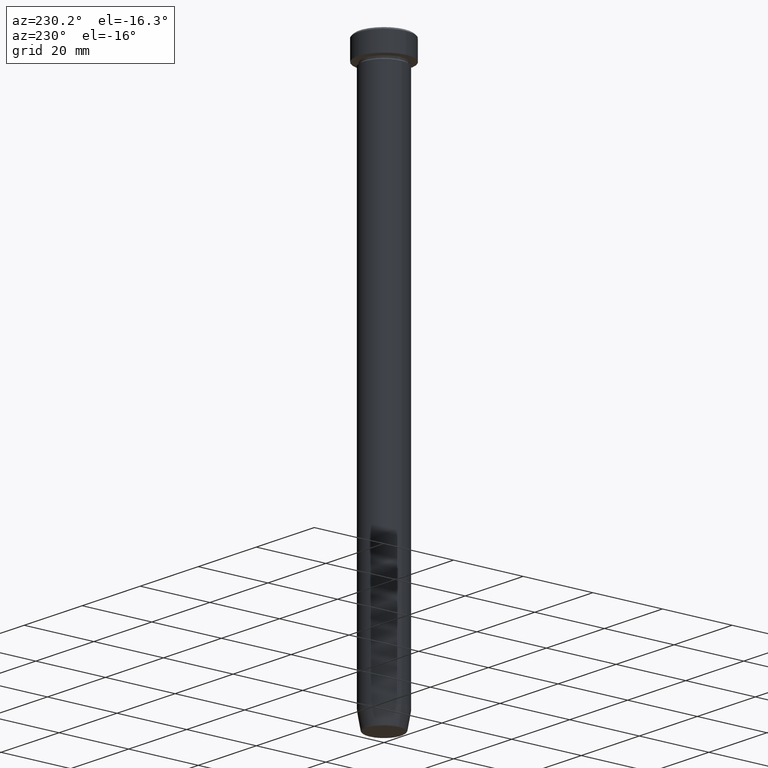
[diagram: clean part render]
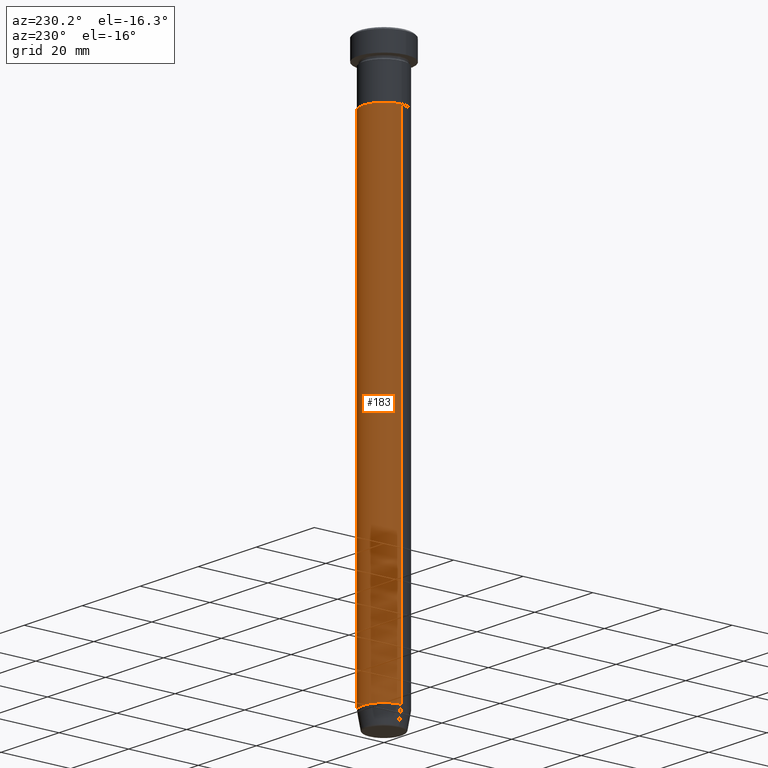
[diagram: same view with one face highlighted and labeled with its STEP entity id]
A machine part, auxiliary view. The second image highlights one B-rep face of the part: STEP entity #183.
In plain terms, the highlighted cylindrical surface (edge-blend (fillet) strip) has radius 6 mm, axis along (-0, -0, 1).
Its self-contained STEP definition (entity closure, byte-faithful):
#4 = CIRCLE ( 'NONE', #353, 6.000000000000000000 ) ;
#26 = CARTESIAN_POINT ( 'NONE',  ( 0.000000000000000000, 0.000000000000000000, -154.9999999999999716 ) ) ;
#27 = CARTESIAN_POINT ( 'NONE',  ( 0.000000000000000000, 0.000000000000000000, 0.000000000000000000 ) ) ;
#84 = DIRECTION ( 'NONE',  ( -0.000000000000000000, -0.000000000000000000, 1.000000000000000000 ) ) ;
#95 = VERTEX_POINT ( 'NONE', #323 ) ;
#124 = DIRECTION ( 'NONE',  ( -0.000000000000000000, -0.000000000000000000, 1.000000000000000000 ) ) ;
#128 = ORIENTED_EDGE ( 'NONE', *, *, #392, .T. ) ;
#162 = DIRECTION ( 'NONE',  ( -0.000000000000000000, -0.000000000000000000, 1.000000000000000000 ) ) ;
#169 = AXIS2_PLACEMENT_3D ( 'NONE', #542, #124, #347 ) ;
#183 = ADVANCED_FACE ( 'NONE', ( #441 ), #205, .T. ) ;
#205 = CYLINDRICAL_SURFACE ( 'NONE', #223, 6.000000000000000000 ) ;
#206 = ORIENTED_EDGE ( 'NONE', *, *, #544, .T. ) ;
#207 = DIRECTION ( 'NONE',  ( -0.000000000000000000, -0.000000000000000000, 1.000000000000000000 ) ) ;
#218 = DIRECTION ( 'NONE',  ( -0.000000000000000000, -0.000000000000000000, 1.000000000000000000 ) ) ;
#223 = AXIS2_PLACEMENT_3D ( 'NONE', #27, #84, #263 ) ;
#225 = CARTESIAN_POINT ( 'NONE',  ( -6.000000000000000000, 7.347880794884119736E-16, -17.00000000000000000 ) ) ;
#244 = VECTOR ( 'NONE', #162, 1000.000000000000000 ) ;
#263 = DIRECTION ( 'NONE',  ( 1.000000000000000000, 0.000000000000000000, 0.000000000000000000 ) ) ;
#284 = CARTESIAN_POINT ( 'NONE',  ( 6.000000000000000000, 0.000000000000000000, 0.000000000000000000 ) ) ;
#288 = VERTEX_POINT ( 'NONE', #417 ) ;
#296 = EDGE_LOOP ( 'NONE', ( #206, #128, #533, #384 ) ) ;
#300 = LINE ( 'NONE', #349, #244 ) ;
#323 = CARTESIAN_POINT ( 'NONE',  ( -6.000000000000000000, 7.347880794884119736E-16, -154.9999999999999716 ) ) ;
#330 = CARTESIAN_POINT ( 'NONE',  ( 6.000000000000000000, 0.000000000000000000, -17.00000000000000000 ) ) ;
#346 = VERTEX_POINT ( 'NONE', #330 ) ;
#347 = DIRECTION ( 'NONE',  ( 1.000000000000000000, 0.000000000000000000, 0.000000000000000000 ) ) ;
#349 = CARTESIAN_POINT ( 'NONE',  ( -6.000000000000000000, 7.347880794884119736E-16, 0.000000000000000000 ) ) ;
#353 = AXIS2_PLACEMENT_3D ( 'NONE', #26, #207, #400 ) ;
#354 = EDGE_CURVE ( 'NONE', #288, #346, #514, .T. ) ;
#384 = ORIENTED_EDGE ( 'NONE', *, *, #354, .F. ) ;
#392 = EDGE_CURVE ( 'NONE', #95, #576, #300, .T. ) ;
#400 = DIRECTION ( 'NONE',  ( 1.000000000000000000, 0.000000000000000000, 0.000000000000000000 ) ) ;
#417 = CARTESIAN_POINT ( 'NONE',  ( 6.000000000000000000, 0.000000000000000000, -154.9999999999999716 ) ) ;
#436 = CIRCLE ( 'NONE', #169, 6.000000000000000000 ) ;
#441 = FACE_OUTER_BOUND ( 'NONE', #296, .T. ) ;
#510 = EDGE_CURVE ( 'NONE', #346, #576, #436, .T. ) ;
#514 = LINE ( 'NONE', #284, #537 ) ;
#533 = ORIENTED_EDGE ( 'NONE', *, *, #510, .F. ) ;
#537 = VECTOR ( 'NONE', #218, 1000.000000000000000 ) ;
#542 = CARTESIAN_POINT ( 'NONE',  ( 0.000000000000000000, 0.000000000000000000, -17.00000000000000000 ) ) ;
#544 = EDGE_CURVE ( 'NONE', #288, #95, #4, .T. ) ;
#576 = VERTEX_POINT ( 'NONE', #225 ) ;